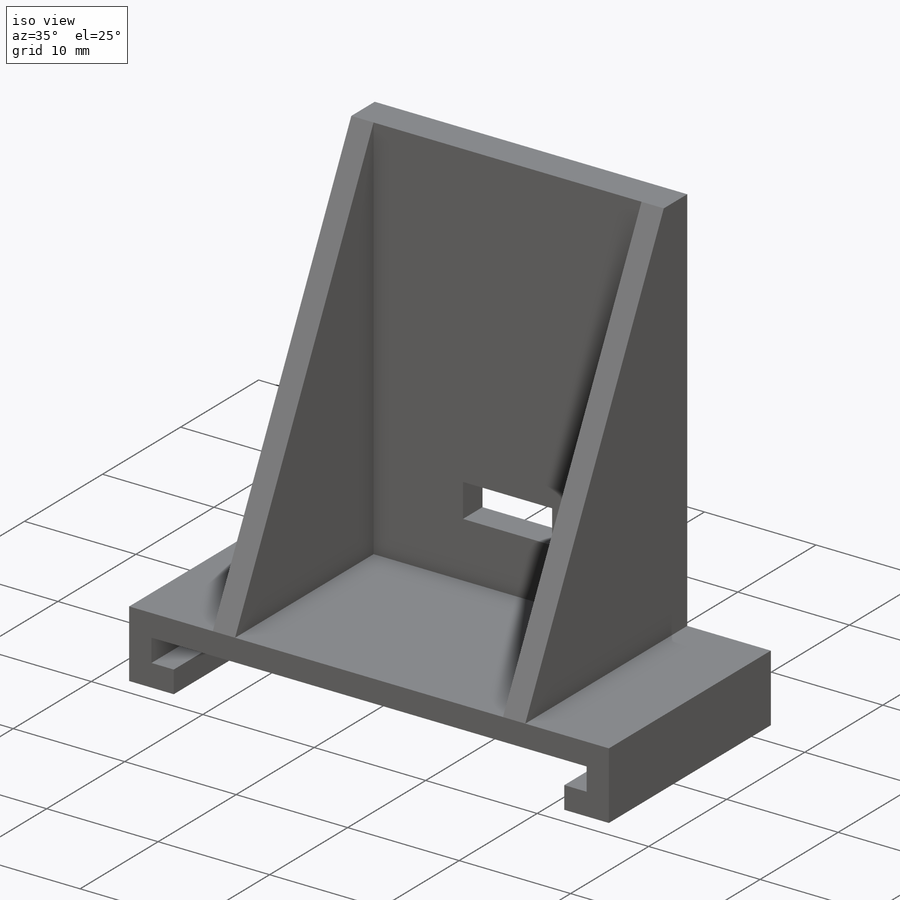
[diagram: iso view]
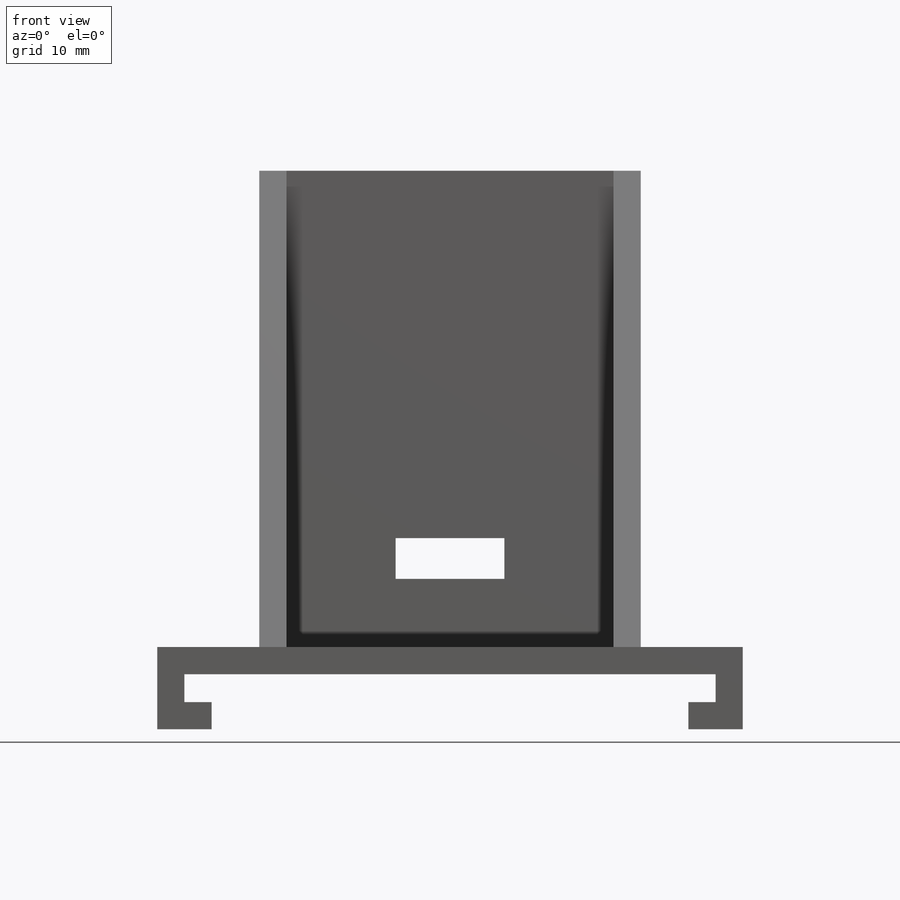
[diagram: front view]
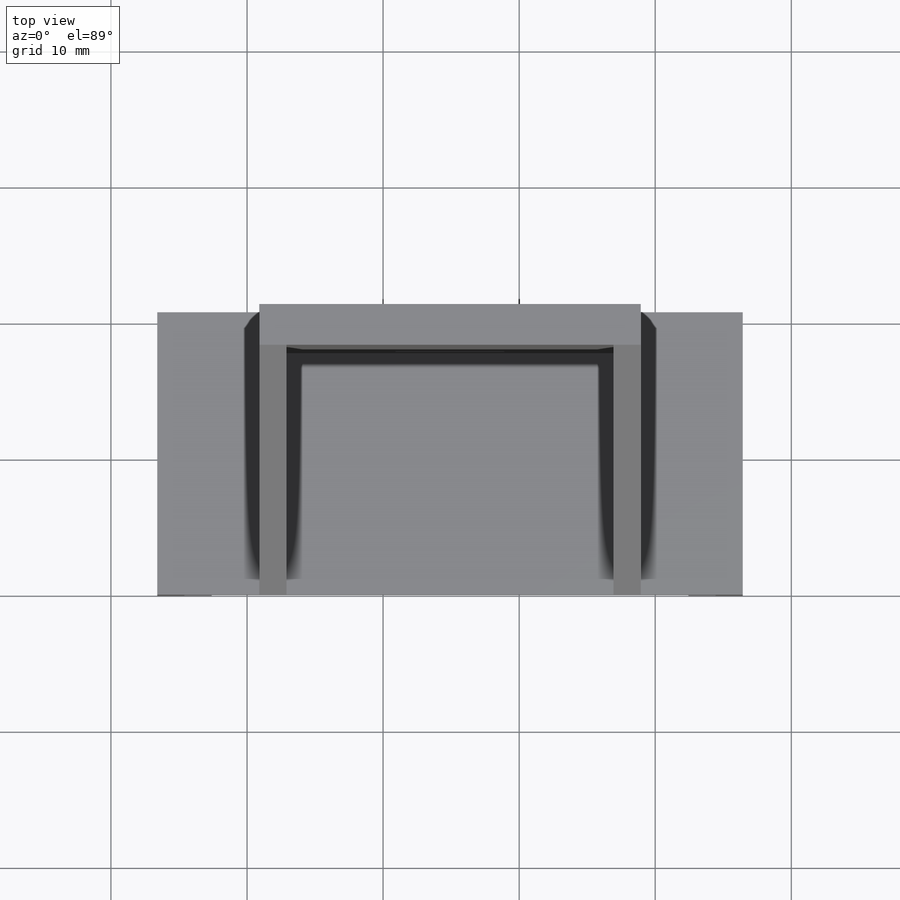
[diagram: top view]
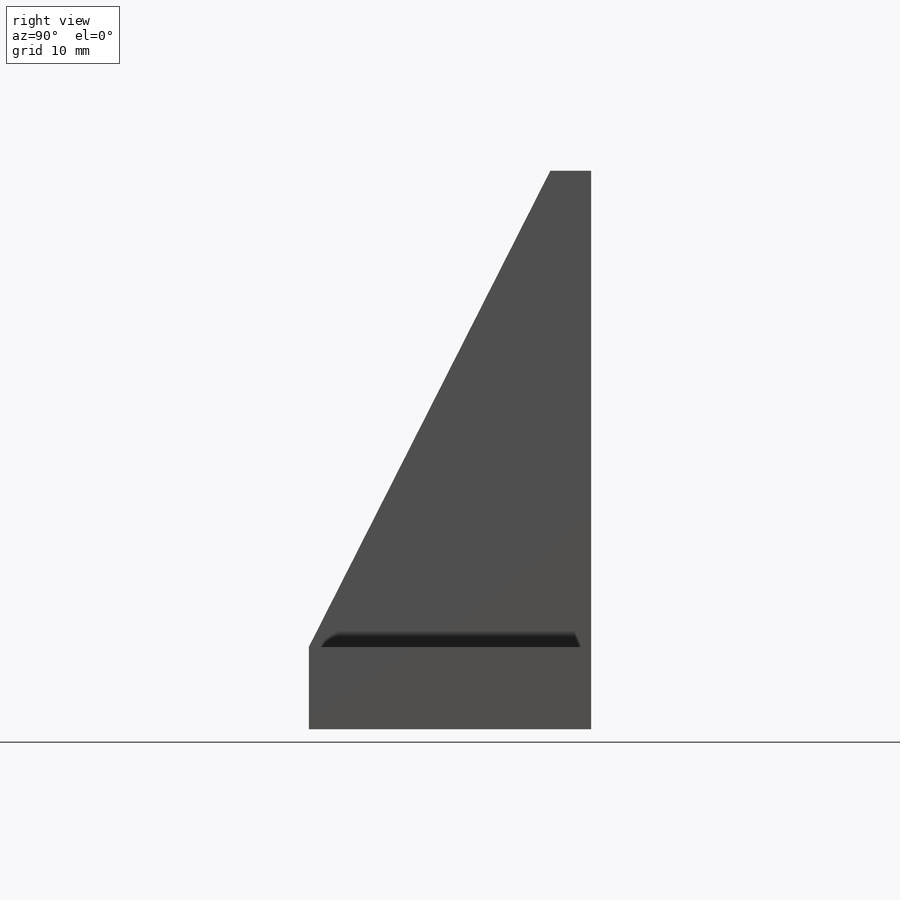
[diagram: right view]
SOLIDWORKS PART (.sldprt)
format: sldprt  version: not decoded by parser v0  size: 228,352 bytes
history: native  units: mm
features: sketch x7, cut_extrude x4, extrude x3, material x1, plane x1 (+12 scaffold rows collapsed)
feature tree (28):
  scaffold x12  (default folders/planes/origin — collapsed)
  material  "PVC Rigid"
  plane  "Plane1"  Offset=28.934315mm
  sketch  "Sketch1"
  extrude  "Boss-Extrude1"  Depth=28.034315mm
  sketch  "Sketch2"
  extrude  "Boss-Extrude2"  Depth=7.5mm
  sketch  "Sketch3"
  extrude  "Boss-Extrude3"  Depth=7.5mm
  sketch  "Sketch4"
  cut_extrude  "Cut-Extrude1"  Depth=0.5mm
  sketch  "Sketch5"
  cut_extrude  "Cut-Extrude2"  Depth=2.5mm
  sketch  "Sketch6"  dims[c1.D1=2.0mm c1.D2=2.0mm c1.D3=2.0mm c1.D4=2.0mm c1.D5=2.0mm c2.D1=2.0mm c2.D2=2.0mm c2.D3=2.0mm c2.D4=2.0mm c2.D5=2.0mm c2.D6=2.0mm]
  cut_extrude  "Cut-Extrude3"  [1 undecoded]
  sketch  "Sketch8"  dims[c1.D1=~13.535205mm c1.D2=~14.75101mm c2.D1=2.0mm c2.D2=2.0mm]
  cut_extrude  "Cut-Extrude4"  [1 undecoded]
decode coverage: 7 of 14 modeling features carry decoded parameters
note: ~ marks probable driven/reference dimensions
note: 2 parameter values undecoded
note: suppression state not decoded; provenance and decode notes live in map.json
